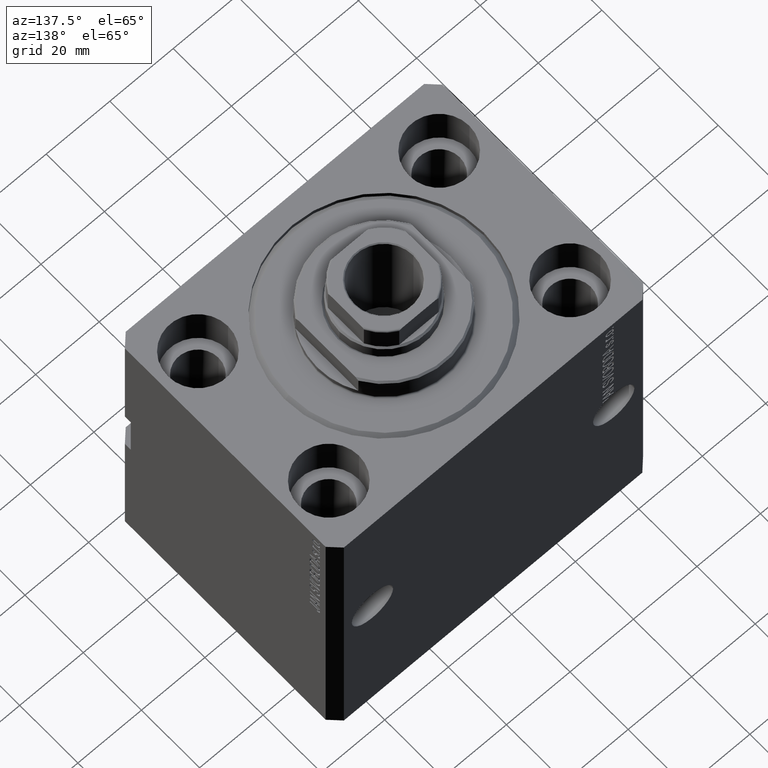
[diagram: clean part render]
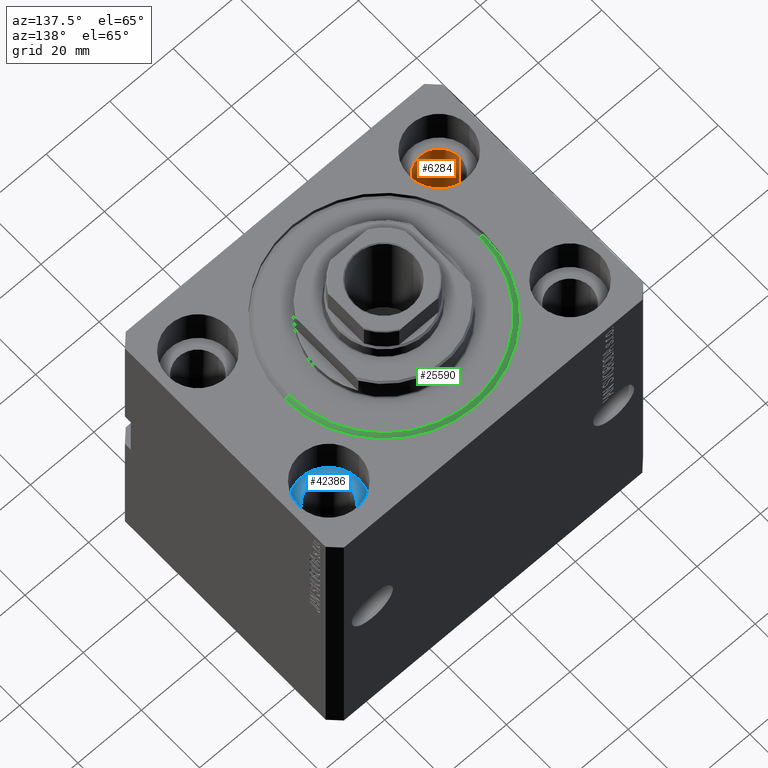
[diagram: same view with three faces highlighted in distinct colors, each labeled with its STEP entity id]
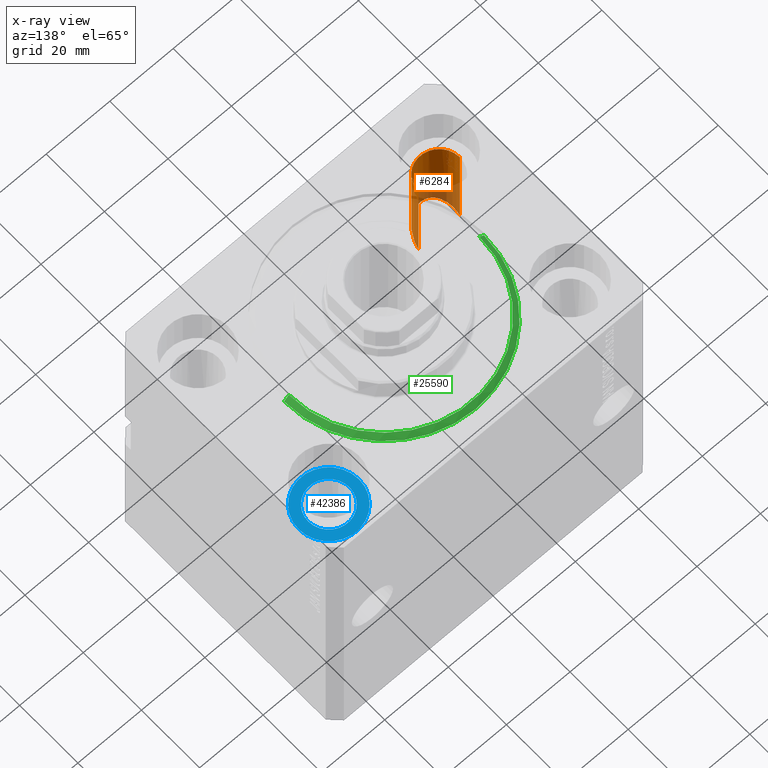
[diagram: x-ray of the same camera — body ghosted, the three highlighted faces saturated]
A machine part, auxiliary view with three faces highlighted in distinct colors.
The next image is the same camera in x-ray (body ghosted, the three faces saturated) — at least one of them is partly hidden behind the body in this view.
Their STEP definitions:

[orange] entity #6284 — the highlighted cylindrical surface (edge-blend (fillet) strip) has radius 6.5 mm, axis along (0, 0, 1).
#675 = VERTEX_POINT ( 'NONE', #8415 ) ;
#777 = CARTESIAN_POINT ( 'NONE',  ( -31.49999999999998579, -35.49999999999999289, -32.00000000000000711 ) ) ;
#1054 = FACE_OUTER_BOUND ( 'NONE', #22791, .T. ) ;
#2544 = VERTEX_POINT ( 'NONE', #35489 ) ;
#3771 = DIRECTION ( 'NONE',  ( -0.000000000000000000, -0.000000000000000000, 1.000000000000000000 ) ) ;
#4643 = CARTESIAN_POINT ( 'NONE',  ( -44.49999999999999289, -35.49999999999999289, -32.00000000000000711 ) ) ;
#5407 = AXIS2_PLACEMENT_3D ( 'NONE', #26579, #5912, #40431 ) ;
#5912 = DIRECTION ( 'NONE',  ( 0.000000000000000000, 0.000000000000000000, 1.000000000000000000 ) ) ;
#6284 = ADVANCED_FACE ( 'NONE', ( #1054 ), #11503, .F. ) ;
#6481 = ORIENTED_EDGE ( 'NONE', *, *, #33812, .T. ) ;
#8415 = CARTESIAN_POINT ( 'NONE',  ( -44.49999999999999289, -22.50000000000000000, -45.00000000000000711 ) ) ;
#8545 = DIRECTION ( 'NONE',  ( 1.000000000000000000, 0.000000000000000000, 0.000000000000000000 ) ) ;
#8921 = ORIENTED_EDGE ( 'NONE', *, *, #39112, .T. ) ;
#9679 = EDGE_CURVE ( 'NONE', #2544, #12994, #25327, .T. ) ;
#11035 = LINE ( 'NONE', #34873, #23215 ) ;
#11503 = CYLINDRICAL_SURFACE ( 'NONE', #13234, 6.499999999999999112 ) ;
#12977 = CARTESIAN_POINT ( 'NONE',  ( -44.50000000000000711, -22.50000000000000000, -13.00000000000000000 ) ) ;
#12994 = VERTEX_POINT ( 'NONE', #33721 ) ;
#13234 = AXIS2_PLACEMENT_3D ( 'NONE', #31708, #38976, #8545 ) ;
#14221 =( BOUNDED_CURVE ( )  B_SPLINE_CURVE ( 3, ( #35513, #777, #4643, #42334 ),
 .UNSPECIFIED., .F., .F. ) 
 B_SPLINE_CURVE_WITH_KNOTS ( ( 4, 4 ),
 ( 4.712388980384689674, 7.853981633974482790 ),
 .UNSPECIFIED. ) 
 CURVE ( )  GEOMETRIC_REPRESENTATION_ITEM ( )  RATIONAL_B_SPLINE_CURVE ( ( 1.000000000000000000, 0.3333333333333333703, 0.3333333333333333703, 1.000000000000000000 ) ) 
 REPRESENTATION_ITEM ( '' )  );
#14925 = CIRCLE ( 'NONE', #5407, 6.499999999999999112 ) ;
#17588 = ORIENTED_EDGE ( 'NONE', *, *, #19971, .T. ) ;
#19971 = EDGE_CURVE ( 'NONE', #27770, #12994, #14925, .T. ) ;
#22791 = EDGE_LOOP ( 'NONE', ( #6481, #8921, #17588, #26757 ) ) ;
#23215 = VECTOR ( 'NONE', #3771, 1000.000000000000000 ) ;
#25327 = LINE ( 'NONE', #42580, #38667 ) ;
#26579 = CARTESIAN_POINT ( 'NONE',  ( -38.00000000000000711, -22.50000000000000000, -13.00000000000000000 ) ) ;
#26757 = ORIENTED_EDGE ( 'NONE', *, *, #9679, .F. ) ;
#27770 = VERTEX_POINT ( 'NONE', #12977 ) ;
#31708 = CARTESIAN_POINT ( 'NONE',  ( -38.00000000000000711, -22.50000000000000000, -95.00000000000000000 ) ) ;
#33721 = CARTESIAN_POINT ( 'NONE',  ( -31.50000000000000711, -22.50000000000000000, -13.00000000000000000 ) ) ;
#33812 = EDGE_CURVE ( 'NONE', #2544, #675, #14221, .T. ) ;
#34873 = CARTESIAN_POINT ( 'NONE',  ( -44.50000000000000711, -22.50000000000000000, -95.00000000000000000 ) ) ;
#35489 = CARTESIAN_POINT ( 'NONE',  ( -31.49999999999999289, -22.50000000000000000, -45.00000000000000711 ) ) ;
#35513 = CARTESIAN_POINT ( 'NONE',  ( -31.49999999999999289, -22.50000000000000000, -45.00000000000000711 ) ) ;
#35987 = DIRECTION ( 'NONE',  ( -0.000000000000000000, -0.000000000000000000, 1.000000000000000000 ) ) ;
#38667 = VECTOR ( 'NONE', #35987, 1000.000000000000000 ) ;
#38976 = DIRECTION ( 'NONE',  ( -0.000000000000000000, -0.000000000000000000, 1.000000000000000000 ) ) ;
#39112 = EDGE_CURVE ( 'NONE', #675, #27770, #11035, .T. ) ;
#40431 = DIRECTION ( 'NONE',  ( 1.000000000000000000, 0.000000000000000000, 0.000000000000000000 ) ) ;
#42334 = CARTESIAN_POINT ( 'NONE',  ( -44.49999999999999289, -22.50000000000000000, -45.00000000000000711 ) ) ;
#42580 = CARTESIAN_POINT ( 'NONE',  ( -31.50000000000000711, -22.50000000000000000, -95.00000000000000000 ) ) ;

[blue] entity #42386 — the highlighted planar face has unit normal (0, 0, 1).
#193 = DIRECTION ( 'NONE',  ( 0.000000000000000000, 0.000000000000000000, 1.000000000000000000 ) ) ;
#1341 = CARTESIAN_POINT ( 'NONE',  ( 47.50000000000000711, 22.50000000000001421, -13.00000000000000000 ) ) ;
#1377 = CIRCLE ( 'NONE', #7154, 9.500000000000001776 ) ;
#2099 = EDGE_CURVE ( 'NONE', #16653, #14257, #32696, .T. ) ;
#2367 = ORIENTED_EDGE ( 'NONE', *, *, #34676, .F. ) ;
#4744 = FACE_OUTER_BOUND ( 'NONE', #33011, .T. ) ;
#4934 = DIRECTION ( 'NONE',  ( 0.000000000000000000, 0.000000000000000000, 1.000000000000000000 ) ) ;
#5035 = CARTESIAN_POINT ( 'NONE',  ( 44.50000000000000711, 22.50000000000001421, -13.00000000000000000 ) ) ;
#6909 = CIRCLE ( 'NONE', #28679, 9.500000000000001776 ) ;
#7154 = AXIS2_PLACEMENT_3D ( 'NONE', #14624, #21218, #8274 ) ;
#8274 = DIRECTION ( 'NONE',  ( 1.000000000000000000, 0.000000000000000000, 0.000000000000000000 ) ) ;
#12143 = ORIENTED_EDGE ( 'NONE', *, *, #18859, .T. ) ;
#12703 = DIRECTION ( 'NONE',  ( 0.000000000000000000, 0.000000000000000000, 1.000000000000000000 ) ) ;
#14040 = DIRECTION ( 'NONE',  ( 1.000000000000000000, 0.000000000000000000, 0.000000000000000000 ) ) ;
#14257 = VERTEX_POINT ( 'NONE', #5035 ) ;
#14547 = CARTESIAN_POINT ( 'NONE',  ( 28.50000000000000355, 22.50000000000001421, -13.00000000000000000 ) ) ;
#14624 = CARTESIAN_POINT ( 'NONE',  ( 38.00000000000000711, 22.50000000000001421, -13.00000000000000000 ) ) ;
#16113 = CARTESIAN_POINT ( 'NONE',  ( 38.00000000000000711, 22.50000000000001421, -13.00000000000000000 ) ) ;
#16653 = VERTEX_POINT ( 'NONE', #36084 ) ;
#18602 = DIRECTION ( 'NONE',  ( 0.000000000000000000, 0.000000000000000000, 1.000000000000000000 ) ) ;
#18859 = EDGE_CURVE ( 'NONE', #41936, #39686, #6909, .T. ) ;
#21068 = AXIS2_PLACEMENT_3D ( 'NONE', #41083, #193, #14040 ) ;
#21218 = DIRECTION ( 'NONE',  ( 0.000000000000000000, 0.000000000000000000, 1.000000000000000000 ) ) ;
#22014 = ORIENTED_EDGE ( 'NONE', *, *, #2099, .F. ) ;
#23991 = EDGE_LOOP ( 'NONE', ( #2367, #22014 ) ) ;
#28679 = AXIS2_PLACEMENT_3D ( 'NONE', #16113, #12703, #36989 ) ;
#32173 = EDGE_CURVE ( 'NONE', #39686, #41936, #1377, .T. ) ;
#32696 = CIRCLE ( 'NONE', #21068, 6.499999999999999112 ) ;
#33011 = EDGE_LOOP ( 'NONE', ( #38760, #12143 ) ) ;
#33334 = FACE_BOUND ( 'NONE', #23991, .T. ) ;
#33975 = AXIS2_PLACEMENT_3D ( 'NONE', #36494, #4934, #35812 ) ;
#34676 = EDGE_CURVE ( 'NONE', #14257, #16653, #41239, .T. ) ;
#35812 = DIRECTION ( 'NONE',  ( 1.000000000000000000, 0.000000000000000000, 0.000000000000000000 ) ) ;
#36084 = CARTESIAN_POINT ( 'NONE',  ( 31.50000000000000711, 22.50000000000001421, -13.00000000000000000 ) ) ;
#36494 = CARTESIAN_POINT ( 'NONE',  ( 38.00000000000000711, 22.50000000000001421, -13.00000000000000000 ) ) ;
#36989 = DIRECTION ( 'NONE',  ( 1.000000000000000000, 0.000000000000000000, 0.000000000000000000 ) ) ;
#38760 = ORIENTED_EDGE ( 'NONE', *, *, #32173, .T. ) ;
#39686 = VERTEX_POINT ( 'NONE', #1341 ) ;
#39936 = CARTESIAN_POINT ( 'NONE',  ( 38.00000000000000711, 22.50000000000001421, -13.00000000000000000 ) ) ;
#40156 = PLANE ( 'NONE',  #44428 ) ;
#41083 = CARTESIAN_POINT ( 'NONE',  ( 38.00000000000000711, 22.50000000000001421, -13.00000000000000000 ) ) ;
#41239 = CIRCLE ( 'NONE', #33975, 6.499999999999999112 ) ;
#41936 = VERTEX_POINT ( 'NONE', #14547 ) ;
#42386 = ADVANCED_FACE ( 'NONE', ( #33334, #4744 ), #40156, .T. ) ;
#42667 = DIRECTION ( 'NONE',  ( 1.000000000000000000, 0.000000000000000000, -0.000000000000000000 ) ) ;
#44428 = AXIS2_PLACEMENT_3D ( 'NONE', #39936, #18602, #42667 ) ;

[green] entity #25590 — the highlighted conical surface has half-angle 45 deg.
#934 = CARTESIAN_POINT ( 'NONE',  ( 0.000000000000000000, 0.000000000000000000, 1.500000000000001332 ) ) ;
#3118 = DIRECTION ( 'NONE',  ( -0.000000000000000000, -0.000000000000000000, 1.000000000000000000 ) ) ;
#3604 = EDGE_CURVE ( 'NONE', #30226, #24414, #34870, .T. ) ;
#3905 = CARTESIAN_POINT ( 'NONE',  ( -31.50000000000000000, 3.857637417314162689E-15, 1.500000000000001332 ) ) ;
#7441 = VERTEX_POINT ( 'NONE', #43377 ) ;
#7767 = EDGE_LOOP ( 'NONE', ( #10394, #14785, #18733, #11009 ) ) ;
#8416 = VECTOR ( 'NONE', #21589, 1000.000000000000000 ) ;
#10394 = ORIENTED_EDGE ( 'NONE', *, *, #22185, .F. ) ;
#11009 = ORIENTED_EDGE ( 'NONE', *, *, #24518, .F. ) ;
#11604 = DIRECTION ( 'NONE',  ( 1.000000000000000000, 0.000000000000000000, 0.000000000000000000 ) ) ;
#14022 = CARTESIAN_POINT ( 'NONE',  ( 0.000000000000000000, 0.000000000000000000, 0.000000000000000000 ) ) ;
#14572 = DIRECTION ( 'NONE',  ( -0.7071067811865491270, 8.659560562354952580E-17, 0.7071067811865459074 ) ) ;
#14585 = AXIS2_PLACEMENT_3D ( 'NONE', #34222, #3118, #21024 ) ;
#14776 = DIRECTION ( 'NONE',  ( -0.000000000000000000, -0.000000000000000000, 1.000000000000000000 ) ) ;
#14785 = ORIENTED_EDGE ( 'NONE', *, *, #17752, .T. ) ;
#14806 = LINE ( 'NONE', #3905, #35137 ) ;
#15620 = AXIS2_PLACEMENT_3D ( 'NONE', #14022, #41726, #34900 ) ;
#16415 = CONICAL_SURFACE ( 'NONE', #23680, 31.50000000000000000, 0.7853981633974506105 ) ;
#17752 = EDGE_CURVE ( 'NONE', #34798, #24414, #14806, .T. ) ;
#18733 = ORIENTED_EDGE ( 'NONE', *, *, #3604, .F. ) ;
#20911 = CARTESIAN_POINT ( 'NONE',  ( -31.50000000000000000, 0.000000000000000000, 1.500000000000001332 ) ) ;
#21024 = DIRECTION ( 'NONE',  ( 1.000000000000000000, 0.000000000000000000, 0.000000000000000000 ) ) ;
#21360 = CARTESIAN_POINT ( 'NONE',  ( 31.50000000000000000, 0.000000000000000000, 1.500000000000001332 ) ) ;
#21589 = DIRECTION ( 'NONE',  ( 0.7071067811865491270, 0.000000000000000000, 0.7071067811865459074 ) ) ;
#22185 = EDGE_CURVE ( 'NONE', #34798, #7441, #40279, .T. ) ;
#23680 = AXIS2_PLACEMENT_3D ( 'NONE', #934, #14776, #11604 ) ;
#24414 = VERTEX_POINT ( 'NONE', #20911 ) ;
#24518 = EDGE_CURVE ( 'NONE', #7441, #30226, #35895, .T. ) ;
#25590 = ADVANCED_FACE ( 'NONE', ( #28868 ), #16415, .T. ) ;
#26709 = CARTESIAN_POINT ( 'NONE',  ( -29.99999999999999289, 3.765788907378110539E-15, 0.000000000000000000 ) ) ;
#28868 = FACE_OUTER_BOUND ( 'NONE', #7767, .T. ) ;
#30226 = VERTEX_POINT ( 'NONE', #32511 ) ;
#32511 = CARTESIAN_POINT ( 'NONE',  ( 31.50000000000000000, 3.857637417314162689E-15, 1.500000000000001332 ) ) ;
#34222 = CARTESIAN_POINT ( 'NONE',  ( 0.000000000000000000, 0.000000000000000000, 1.500000000000001332 ) ) ;
#34798 = VERTEX_POINT ( 'NONE', #26709 ) ;
#34870 = CIRCLE ( 'NONE', #14585, 31.50000000000000000 ) ;
#34900 = DIRECTION ( 'NONE',  ( 1.000000000000000000, 0.000000000000000000, 0.000000000000000000 ) ) ;
#35137 = VECTOR ( 'NONE', #14572, 1000.000000000000000 ) ;
#35895 = LINE ( 'NONE', #21360, #8416 ) ;
#40279 = CIRCLE ( 'NONE', #15620, 29.99999999999999289 ) ;
#41726 = DIRECTION ( 'NONE',  ( -0.000000000000000000, -0.000000000000000000, -1.000000000000000000 ) ) ;
#43377 = CARTESIAN_POINT ( 'NONE',  ( 29.99999999999999289, 0.000000000000000000, 0.000000000000000000 ) ) ;